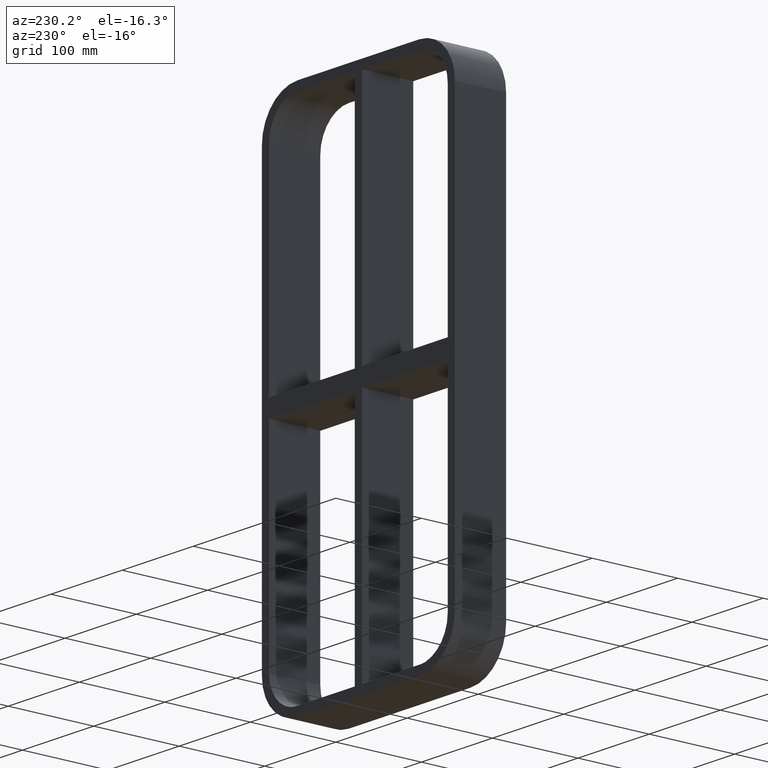
[diagram: clean part render]
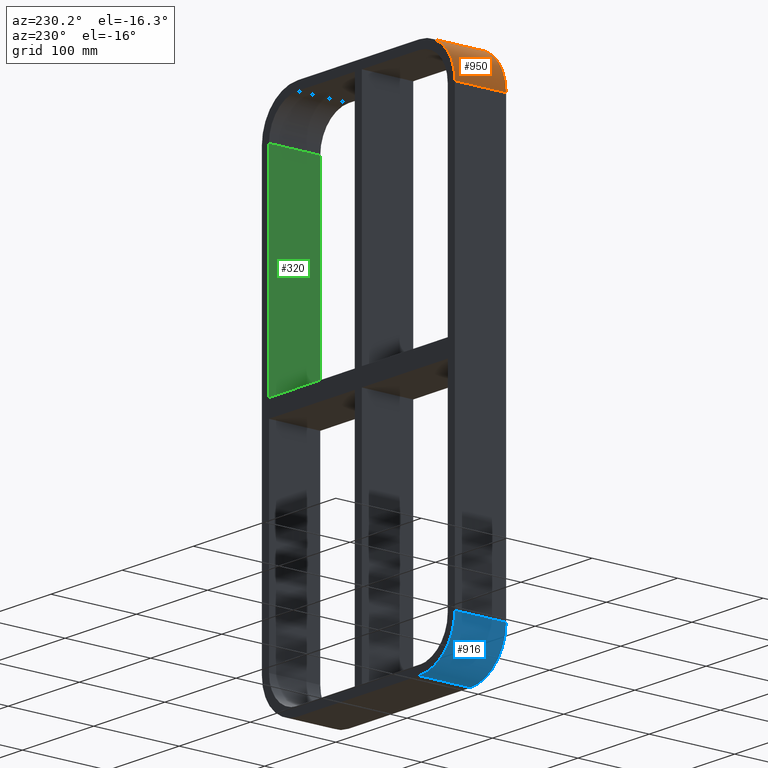
[diagram: same view with three faces highlighted in distinct colors, each labeled with its STEP entity id]
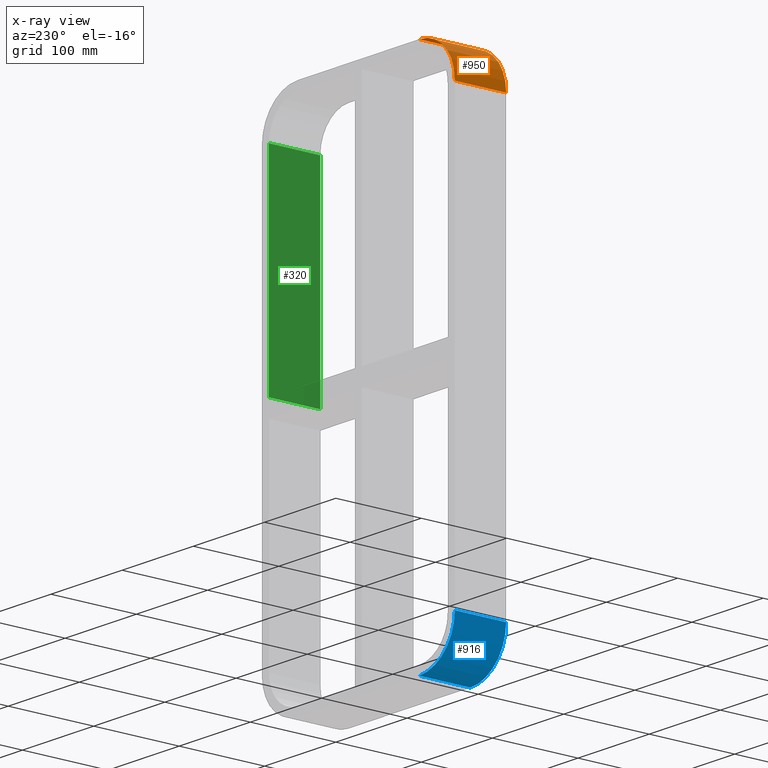
[diagram: x-ray of the same camera — body ghosted, the three highlighted faces saturated]
A machine part, auxiliary view with three faces highlighted in distinct colors.
The next image is the same camera in x-ray (body ghosted, the three faces saturated) — at least one of them is partly hidden behind the body in this view.
Their STEP definitions:

[orange] entity #950 — the highlighted cylindrical surface (partial cylindrical patch) has radius 50 mm, axis along (0, 1, 0).
#354=CARTESIAN_POINT('',(-135.50000000000006,57.0,248.00000000000006));
#355=VERTEX_POINT('',#354);
#362=CARTESIAN_POINT('',(-85.500000000000043,57.0,298.00000000000006));
#363=VERTEX_POINT('',#362);
#364=CARTESIAN_POINT('',(-85.500000000000043,57.0,248.00000000000006));
#365=DIRECTION('',(0.0,-1.0,0.0));
#366=DIRECTION('',(-0.707106781186547,0.0,0.707106781186547));
#367=AXIS2_PLACEMENT_3D('',#364,#365,#366);
#368=CIRCLE('',#367,49.999999999999986);
#369=EDGE_CURVE('',#363,#355,#368,.T.);
#759=CARTESIAN_POINT('',(-85.500000000000043,-3.0,298.00000000000006));
#760=VERTEX_POINT('',#759);
#767=CARTESIAN_POINT('',(-135.50000000000006,-3.0,248.00000000000006));
#768=VERTEX_POINT('',#767);
#769=CARTESIAN_POINT('',(-85.500000000000043,-3.0,248.00000000000006));
#770=DIRECTION('',(0.0,1.0,0.0));
#771=DIRECTION('',(-0.707106781186547,0.0,0.707106781186547));
#772=AXIS2_PLACEMENT_3D('',#769,#770,#771);
#773=CIRCLE('',#772,49.999999999999986);
#774=EDGE_CURVE('',#768,#760,#773,.T.);
#924=CARTESIAN_POINT('',(-135.50000000000006,57.0,248.00000000000006));
#925=DIRECTION('',(0.0,-1.0,0.0));
#926=VECTOR('',#925,60.0);
#927=LINE('',#924,#926);
#928=EDGE_CURVE('',#355,#768,#927,.T.);
#934=CARTESIAN_POINT('',(-85.500000000000043,0.0,248.00000000000006));
#935=DIRECTION('',(0.0,1.0,0.0));
#936=DIRECTION('',(-0.707106781186547,0.0,0.707106781186547));
#937=AXIS2_PLACEMENT_3D('',#934,#935,#936);
#938=CYLINDRICAL_SURFACE('',#937,49.999999999999993);
#939=ORIENTED_EDGE('',*,*,#369,.T.);
#940=ORIENTED_EDGE('',*,*,#928,.T.);
#941=ORIENTED_EDGE('',*,*,#774,.T.);
#942=CARTESIAN_POINT('',(-85.500000000000043,-3.0,298.00000000000006));
#943=DIRECTION('',(0.0,1.0,0.0));
#944=VECTOR('',#943,60.0);
#945=LINE('',#942,#944);
#946=EDGE_CURVE('',#760,#363,#945,.T.);
#947=ORIENTED_EDGE('',*,*,#946,.T.);
#948=EDGE_LOOP('',(#939,#940,#941,#947));
#949=FACE_OUTER_BOUND('',#948,.T.);
#950=ADVANCED_FACE('',(#949),#938,.T.);

[blue] entity #916 — the highlighted cylindrical surface (partial cylindrical patch) has radius 50 mm, axis along (0, 1, 0).
#337=CARTESIAN_POINT('',(-85.500000000000043,57.0,-298.0));
#338=VERTEX_POINT('',#337);
#345=CARTESIAN_POINT('',(-135.50000000000006,57.0,-247.99999999999997));
#346=VERTEX_POINT('',#345);
#347=CARTESIAN_POINT('',(-85.500000000000043,57.0,-247.99999999999997));
#348=DIRECTION('',(0.0,-1.0,0.0));
#349=DIRECTION('',(-0.707106781186547,0.0,-0.707106781186547));
#350=AXIS2_PLACEMENT_3D('',#347,#348,#349);
#351=CIRCLE('',#350,49.999999999999986);
#352=EDGE_CURVE('',#346,#338,#351,.T.);
#776=CARTESIAN_POINT('',(-135.50000000000006,-3.0,-247.99999999999997));
#777=VERTEX_POINT('',#776);
#784=CARTESIAN_POINT('',(-85.500000000000043,-3.0,-298.0));
#785=VERTEX_POINT('',#784);
#786=CARTESIAN_POINT('',(-85.500000000000043,-3.0,-247.99999999999997));
#787=DIRECTION('',(0.0,1.0,0.0));
#788=DIRECTION('',(-0.707106781186547,0.0,-0.707106781186547));
#789=AXIS2_PLACEMENT_3D('',#786,#787,#788);
#790=CIRCLE('',#789,49.999999999999986);
#791=EDGE_CURVE('',#785,#777,#790,.T.);
#895=CARTESIAN_POINT('',(-85.500000000000043,0.0,-247.99999999999997));
#896=DIRECTION('',(0.0,1.0,0.0));
#897=DIRECTION('',(-0.707106781186547,0.0,-0.707106781186547));
#898=AXIS2_PLACEMENT_3D('',#895,#896,#897);
#899=CYLINDRICAL_SURFACE('',#898,49.999999999999993);
#900=ORIENTED_EDGE('',*,*,#352,.T.);
#901=CARTESIAN_POINT('',(-85.500000000000043,57.0,-298.0));
#902=DIRECTION('',(0.0,-1.0,0.0));
#903=VECTOR('',#902,60.0);
#904=LINE('',#901,#903);
#905=EDGE_CURVE('',#338,#785,#904,.T.);
#906=ORIENTED_EDGE('',*,*,#905,.T.);
#907=ORIENTED_EDGE('',*,*,#791,.T.);
#908=CARTESIAN_POINT('',(-135.50000000000006,-3.0,-247.99999999999997));
#909=DIRECTION('',(0.0,1.0,0.0));
#910=VECTOR('',#909,60.0);
#911=LINE('',#908,#910);
#912=EDGE_CURVE('',#777,#346,#911,.T.);
#913=ORIENTED_EDGE('',*,*,#912,.T.);
#914=EDGE_LOOP('',(#900,#906,#907,#913));
#915=FACE_OUTER_BOUND('',#914,.T.);
#916=ADVANCED_FACE('',(#915),#899,.T.);

[green] entity #320 — the highlighted planar face has unit normal (1, 0, 0).
#163=CARTESIAN_POINT('',(125.4999999999999,-3.0,10.0));
#164=VERTEX_POINT('',#163);
#171=CARTESIAN_POINT('',(125.49999999999989,57.0,10.0));
#172=VERTEX_POINT('',#171);
#173=CARTESIAN_POINT('',(125.50000000000004,57.000000000000007,10.0));
#174=DIRECTION('',(0.0,-1.0,0.0));
#175=VECTOR('',#174,60.000000000000007);
#176=LINE('',#173,#175);
#177=EDGE_CURVE('',#172,#164,#176,.T.);
#290=CARTESIAN_POINT('',(125.50000000000004,0.0,288.00000000000006));
#291=DIRECTION('',(1.0,0.0,0.0));
#292=DIRECTION('',(0.0,0.0,-1.0));
#293=AXIS2_PLACEMENT_3D('',#290,#291,#292);
#294=PLANE('',#293);
#295=ORIENTED_EDGE('',*,*,#177,.T.);
#296=CARTESIAN_POINT('',(125.50000000000004,-3.0,248.00000000000006));
#297=VERTEX_POINT('',#296);
#298=CARTESIAN_POINT('',(125.50000000000004,-3.0,248.00000000000003));
#299=DIRECTION('',(0.0,0.0,-1.0));
#300=VECTOR('',#299,238.00000000000003);
#301=LINE('',#298,#300);
#302=EDGE_CURVE('',#297,#164,#301,.T.);
#303=ORIENTED_EDGE('',*,*,#302,.F.);
#304=CARTESIAN_POINT('',(125.50000000000004,57.0,248.00000000000006));
#305=VERTEX_POINT('',#304);
#306=CARTESIAN_POINT('',(125.50000000000004,57.0,248.00000000000006));
#307=DIRECTION('',(0.0,-1.0,0.0));
#308=VECTOR('',#307,60.0);
#309=LINE('',#306,#308);
#310=EDGE_CURVE('',#305,#297,#309,.T.);
#311=ORIENTED_EDGE('',*,*,#310,.F.);
#312=CARTESIAN_POINT('',(125.50000000000004,57.0,10.0));
#313=DIRECTION('',(0.0,0.0,1.0));
#314=VECTOR('',#313,238.00000000000003);
#315=LINE('',#312,#314);
#316=EDGE_CURVE('',#172,#305,#315,.T.);
#317=ORIENTED_EDGE('',*,*,#316,.F.);
#318=EDGE_LOOP('',(#295,#303,#311,#317));
#319=FACE_OUTER_BOUND('',#318,.T.);
#320=ADVANCED_FACE('',(#319),#294,.F.);